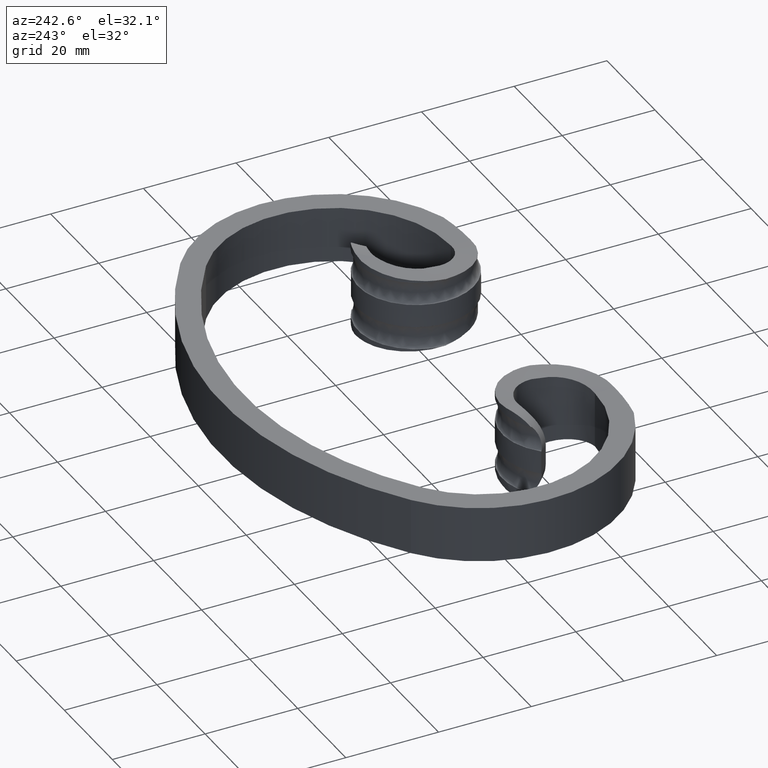
[diagram: clean part render]
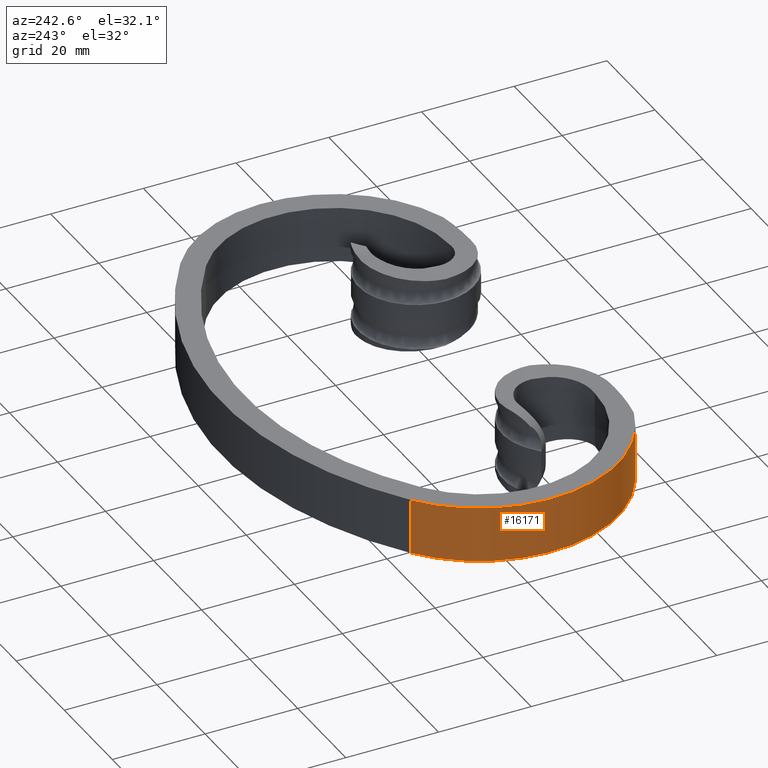
[diagram: same view with one face highlighted and labeled with its STEP entity id]
A machine part, auxiliary view. The second image highlights one B-rep face of the part: STEP entity #16171.
In plain terms, the highlighted cylindrical surface (partial cylindrical patch) has radius 30 mm, axis along (0, 0, 1).
Its self-contained STEP definition (entity closure, byte-faithful):
#26 = CARTESIAN_POINT ( 'NONE',  ( -33.60957285097656211, -34.78653953434132973, 2.521076780284055019 ) ) ;
#102 = VERTEX_POINT ( 'NONE', #13691 ) ;
#316 = CARTESIAN_POINT ( 'NONE',  ( -39.94100396529479013, -33.30515982055183599, -4.339123691819873230 ) ) ;
#382 = CARTESIAN_POINT ( 'NONE',  ( -29.99999999999999289, -5.000000000000006217, 5.999999999999999112 ) ) ;
#569 = ORIENTED_EDGE ( 'NONE', *, *, #9250, .F. ) ;
#952 = CARTESIAN_POINT ( 'NONE',  ( -40.10972003872100089, -33.24524006406705467, 4.824889941809742844 ) ) ;
#1182 = CARTESIAN_POINT ( 'NONE',  ( -36.65296588666402755, -34.25749328320286935, 2.741430999937314539 ) ) ;
#1430 = VERTEX_POINT ( 'NONE', #6202 ) ;
#1497 = CARTESIAN_POINT ( 'NONE',  ( -39.77324953146412412, -33.36356594750649407, -5.906143731068364211 ) ) ;
#1615 = CARTESIAN_POINT ( 'NONE',  ( -40.10267160858218460, -33.24778536449692012, -5.217876227202177475 ) ) ;
#1669 = CARTESIAN_POINT ( 'NONE',  ( -31.03464616614909843, -35.00000000000001421, -2.499999999999996447 ) ) ;
#1759 = CARTESIAN_POINT ( 'NONE',  ( -30.00000000000000711, -35.00000000000000711, 2.500000000000005773 ) ) ;
#1856 = ORIENTED_EDGE ( 'NONE', *, *, #1965, .T. ) ;
#1915 = DIRECTION ( 'NONE',  ( 0.000000000000000000, 0.000000000000000000, 1.000000000000000000 ) ) ;
#1965 = EDGE_CURVE ( 'NONE', #3559, #102, #11753, .T. ) ;
#2305 = CARTESIAN_POINT ( 'NONE',  ( -40.03434387437279440, -33.27212901075144913, 5.464358249652373267 ) ) ;
#2387 = CARTESIAN_POINT ( 'NONE',  ( -48.00000000000000000, 19.00000000000002487, 5.999999999999999112 ) ) ;
#2431 = CARTESIAN_POINT ( 'NONE',  ( -34.12179358005224827, -34.71998734687475263, 2.534372556733911708 ) ) ;
#2488 = CARTESIAN_POINT ( 'NONE',  ( -37.15245185061130684, -34.13918707392649310, 2.823820678074056012 ) ) ;
#2849 = CARTESIAN_POINT ( 'NONE',  ( -37.15558808650383327, -34.13842581089600969, -2.824391554986104502 ) ) ;
#2888 = ORIENTED_EDGE ( 'NONE', *, *, #11082, .T. ) ;
#2934 = DIRECTION ( 'NONE',  ( 0.000000000000000000, 0.000000000000000000, 1.000000000000000000 ) ) ;
#2947 = CARTESIAN_POINT ( 'NONE',  ( -35.14223954260964433, -34.56050634141561773, -2.584956977263026090 ) ) ;
#3264 = ORIENTED_EDGE ( 'NONE', *, *, #4605, .F. ) ;
#3543 = LINE ( 'NONE', #8271, #8743 ) ;
#3559 = VERTEX_POINT ( 'NONE', #9748 ) ;
#3571 = CARTESIAN_POINT ( 'NONE',  ( -39.93823710045167275, -33.30613099952493883, 4.334338715560384969 ) ) ;
#3620 = CARTESIAN_POINT ( 'NONE',  ( -39.85085606364144439, -33.33664513723051925, 5.804636184268792576 ) ) ;
#3998 = CARTESIAN_POINT ( 'NONE',  ( -38.58389487991995281, -33.74674395644375124, -3.258116737940474295 ) ) ;
#4070 = ORIENTED_EDGE ( 'NONE', *, *, #8704, .F. ) ;
#4089 = DIRECTION ( 'NONE',  ( -0.5999999999999999778, 0.8000000000000000444, 0.000000000000000000 ) ) ;
#4151 = CARTESIAN_POINT ( 'NONE',  ( -36.65607667897558741, -34.25680037864239580, -2.741874353455253210 ) ) ;
#4275 = CYLINDRICAL_SURFACE ( 'NONE', #7588, 30.00000000000001776 ) ;
#4366 = DIRECTION ( 'NONE',  ( 0.000000000000000000, 0.000000000000000000, 1.000000000000000000 ) ) ;
#4509 = AXIS2_PLACEMENT_3D ( 'NONE', #382, #4366, #11973 ) ;
#4605 = EDGE_CURVE ( 'NONE', #3559, #13965, #14186, .T. ) ;
#4652 = CARTESIAN_POINT ( 'NONE',  ( -40.10320083241454370, -33.24759580441553197, 5.214972594103278958 ) ) ;
#4661 = DIRECTION ( 'NONE',  ( 0.000000000000000000, 0.000000000000000000, 1.000000000000000000 ) ) ;
#4709 = CARTESIAN_POINT ( 'NONE',  ( -39.44614629065734590, -33.47465930015945901, 3.755532231574040036 ) ) ;
#4829 = CARTESIAN_POINT ( 'NONE',  ( -39.98194188917891267, -33.29073450691878122, 5.583097654755833084 ) ) ;
#4845 = CARTESIAN_POINT ( 'NONE',  ( -39.68713121014017986, -33.39294787297594524, 5.999999999999993783 ) ) ;
#5207 = CARTESIAN_POINT ( 'NONE',  ( -35.65083113604885767, -34.46747075376497094, -2.622113157633668035 ) ) ;
#5261 = CARTESIAN_POINT ( 'NONE',  ( -40.08487872983510414, -33.25415446056986468, -4.697987879839442549 ) ) ;
#5272 = B_SPLINE_CURVE_WITH_KNOTS ( 'NONE', 3,
 ( #11745, #1669, #5308, #14304, #15521, #2947, #5207, #4151, #2849, #15467, #13036, #3998, #15625, #7808, #14155, #5367, #12930, #316, #5415, #5261, #10562, #6526, #1615, #7858, #6641, #11851, #1497, #6479 ),
 .UNSPECIFIED., .F., .F.,
 ( 4, 2, 2, 2, 2, 2, 2, 2, 2, 2, 2, 2, 2, 4 ),
 ( 1.734723475976807094E-17, 0.003103851917188592789, 0.004655777875782870535, 0.006207703834377149149, 0.007759629792971426895, 0.008535592772268564901, 0.009311555751565699438, 0.01008751873086283744, 0.01047550022051140992, 0.01086348171015998412, 0.01125146319980855660, 0.01163944468945713080, 0.01202742617910570327, 0.01241540766875427748 ),
 .UNSPECIFIED. ) ;
#5308 = CARTESIAN_POINT ( 'NONE',  ( -32.06959564269521934, -34.94635245827134895, -2.497023244251201923 ) ) ;
#5367 = CARTESIAN_POINT ( 'NONE',  ( -39.71821717119991746, -33.38247679792097955, -4.029117176230479380 ) ) ;
#5415 = CARTESIAN_POINT ( 'NONE',  ( -40.00010717754879153, -33.28426912109905089, -4.454037117925794043 ) ) ;
#5500 = VERTEX_POINT ( 'NONE', #1759 ) ;
#5868 = AXIS2_PLACEMENT_3D ( 'NONE', #10454, #2934, #4089 ) ;
#6202 = CARTESIAN_POINT ( 'NONE',  ( -30.00000000000001421, -35.00000000000002132, -2.499999999999998668 ) ) ;
#6479 = CARTESIAN_POINT ( 'NONE',  ( -39.68713121014025091, -33.39294787297593103, -6.000000000000000000 ) ) ;
#6526 = CARTESIAN_POINT ( 'NONE',  ( -40.11905704082759883, -33.24189631217559793, -5.085740284619676643 ) ) ;
#6641 = CARTESIAN_POINT ( 'NONE',  ( -39.98000678861689750, -33.29141568817055941, -5.586770068578251980 ) ) ;
#6928 = CIRCLE ( 'NONE', #4509, 30.00000000000001776 ) ;
#7060 = DIRECTION ( 'NONE',  ( 1.000000000000000000, 0.000000000000000000, 0.000000000000000000 ) ) ;
#7395 = CARTESIAN_POINT ( 'NONE',  ( -39.71533674740331321, -33.38346714877729227, 4.025750681107143514 ) ) ;
#7588 = AXIS2_PLACEMENT_3D ( 'NONE', #8316, #1915, #7060 ) ;
#7638 = CARTESIAN_POINT ( 'NONE',  ( -37.87744776073247976, -33.94837239773734439, 3.009393491498806750 ) ) ;
#7700 = CARTESIAN_POINT ( 'NONE',  ( -32.06782060344024643, -34.94648447383305268, 2.497017199072705473 ) ) ;
#7808 = CARTESIAN_POINT ( 'NONE',  ( -39.24640646460750304, -33.54042349256870637, -3.612598183516648742 ) ) ;
#7858 = CARTESIAN_POINT ( 'NONE',  ( -40.03340696008379496, -33.27246180301393963, -5.466743469486149642 ) ) ;
#8271 = CARTESIAN_POINT ( 'NONE',  ( -30.00000000000002132, -35.00000000000001421, 5.999999999999999112 ) ) ;
#8316 = CARTESIAN_POINT ( 'NONE',  ( -29.99999999999999289, -5.000000000000006217, 0.000000000000000000 ) ) ;
#8593 = CARTESIAN_POINT ( 'NONE',  ( -39.68713121014017986, -33.39294787297594524, 5.999999999999993783 ) ) ;
#8704 = EDGE_CURVE ( 'NONE', #14982, #5500, #9272, .T. ) ;
#8743 = VECTOR ( 'NONE', #4661, 1000.000000000000000 ) ;
#8939 = CARTESIAN_POINT ( 'NONE',  ( -38.11525391257402617, -33.88254348787904746, 3.081685452114116153 ) ) ;
#8969 = EDGE_LOOP ( 'NONE', ( #4070, #15403, #3264, #1856, #569, #2888 ) ) ;
#8987 = EDGE_CURVE ( 'NONE', #13965, #14982, #6928, .T. ) ;
#9250 = EDGE_CURVE ( 'NONE', #1430, #102, #5272, .T. ) ;
#9272 = B_SPLINE_CURVE_WITH_KNOTS ( 'NONE', 3,
 ( #8593, #11018, #3620, #4829, #2305, #4652, #11137, #952, #11073, #12376, #3571, #11191, #7395, #4709, #16294, #12554, #13822, #8939, #7638, #2488, #1182, #12844, #12736, #2431, #26, #7700, #10046, #12674 ),
 .UNSPECIFIED., .F., .F.,
 ( 4, 2, 2, 2, 2, 2, 2, 2, 2, 2, 2, 2, 2, 4 ),
 ( 2.666343907633295802E-17, 0.0003905336941679052689, 0.0007810673883357838665, 0.001171601082503662518, 0.001562134776671541062, 0.001952668470839419822, 0.002343202165007298148, 0.003124269553343055235, 0.003905336941678812755, 0.004686404330014570276, 0.006248539106686104398, 0.007810673883357638521, 0.009372808660029171776, 0.01249707821337224176 ),
 .UNSPECIFIED. ) ;
#9748 = CARTESIAN_POINT ( 'NONE',  ( -47.99999999999998579, 19.00000000000002487, -5.999999999999999112 ) ) ;
#10046 = CARTESIAN_POINT ( 'NONE',  ( -31.03425531657853043, -34.99999999999909051, 2.500000000000004885 ) ) ;
#10454 = CARTESIAN_POINT ( 'NONE',  ( -29.99999999999999289, -5.000000000000006217, -5.999999999999999112 ) ) ;
#10562 = CARTESIAN_POINT ( 'NONE',  ( -40.11008542176589486, -33.24510923094114645, -4.827539298695031178 ) ) ;
#10775 = VECTOR ( 'NONE', #13846, 1000.000000000000000 ) ;
#11018 = CARTESIAN_POINT ( 'NONE',  ( -39.77348341043484936, -33.36348615247121785, 5.905888837484406295 ) ) ;
#11073 = CARTESIAN_POINT ( 'NONE',  ( -40.08398598111839561, -33.25447366749119738, 4.694374014647994642 ) ) ;
#11082 = EDGE_CURVE ( 'NONE', #1430, #5500, #3543, .T. ) ;
#11137 = CARTESIAN_POINT ( 'NONE',  ( -40.11923532930644853, -33.24183248105922672, 5.083162706958544774 ) ) ;
#11191 = CARTESIAN_POINT ( 'NONE',  ( -39.79678706700765645, -33.35539758125025145, 4.122647559490663305 ) ) ;
#11745 = CARTESIAN_POINT ( 'NONE',  ( -30.00000000000001421, -35.00000000000002132, -2.499999999999998668 ) ) ;
#11753 = CIRCLE ( 'NONE', #5868, 30.00000000000001776 ) ;
#11851 = CARTESIAN_POINT ( 'NONE',  ( -39.85008839021721627, -33.33691048520658029, -5.805523064409680245 ) ) ;
#11973 = DIRECTION ( 'NONE',  ( -0.5999999999999999778, 0.8000000000000000444, 0.000000000000000000 ) ) ;
#12376 = CARTESIAN_POINT ( 'NONE',  ( -39.99854085539065096, -33.28482342630815083, 4.450605043449862741 ) ) ;
#12554 = CARTESIAN_POINT ( 'NONE',  ( -38.81007823598050521, -33.67810955388316074, 3.360237171165879833 ) ) ;
#12674 = CARTESIAN_POINT ( 'NONE',  ( -30.00000000000000711, -35.00000000000000711, 2.500000000000005773 ) ) ;
#12736 = CARTESIAN_POINT ( 'NONE',  ( -35.14251631970572731, -34.56046948403416508, 2.584964824415431739 ) ) ;
#12844 = CARTESIAN_POINT ( 'NONE',  ( -35.64933821455273488, -34.46774246601479774, 2.622008376413542230 ) ) ;
#12930 = CARTESIAN_POINT ( 'NONE',  ( -39.79926276184579592, -33.35454252195388136, -4.125731821421855017 ) ) ;
#13036 = CARTESIAN_POINT ( 'NONE',  ( -38.11912503920991924, -33.88145335686078852, -3.082962085974042310 ) ) ;
#13691 = CARTESIAN_POINT ( 'NONE',  ( -39.68713121014025091, -33.39294787297593103, -6.000000000000000000 ) ) ;
#13822 = CARTESIAN_POINT ( 'NONE',  ( -38.58053656880703386, -33.74774872205019705, 3.256671673978033699 ) ) ;
#13846 = DIRECTION ( 'NONE',  ( 0.000000000000000000, 0.000000000000000000, 1.000000000000000000 ) ) ;
#13965 = VERTEX_POINT ( 'NONE', #15260 ) ;
#14155 = CARTESIAN_POINT ( 'NONE',  ( -39.45268330262683065, -33.47247293553456160, -3.761176258326891730 ) ) ;
#14186 = LINE ( 'NONE', #2387, #10775 ) ;
#14304 = CARTESIAN_POINT ( 'NONE',  ( -33.61093357141555771, -34.78637224743294354, -2.521108865968185064 ) ) ;
#14836 = FACE_OUTER_BOUND ( 'NONE', #8969, .T. ) ;
#14982 = VERTEX_POINT ( 'NONE', #4845 ) ;
#15260 = CARTESIAN_POINT ( 'NONE',  ( -47.99999999999998579, 19.00000000000002487, 5.999999999999999112 ) ) ;
#15403 = ORIENTED_EDGE ( 'NONE', *, *, #8987, .F. ) ;
#15467 = CARTESIAN_POINT ( 'NONE',  ( -37.88129820008000337, -33.94732653599669447, -3.010496311293497929 ) ) ;
#15521 = CARTESIAN_POINT ( 'NONE',  ( -34.12279634646503013, -34.71983702781736980, -2.534416391829592996 ) ) ;
#15625 = CARTESIAN_POINT ( 'NONE',  ( -38.81229737945182023, -33.67743399504232826, -3.361251486912266273 ) ) ;
#16171 = ADVANCED_FACE ( 'NONE', ( #14836 ), #4275, .T. ) ;
#16294 = CARTESIAN_POINT ( 'NONE',  ( -39.24269247779098890, -33.54162016896741960, 3.610180938075332246 ) ) ;